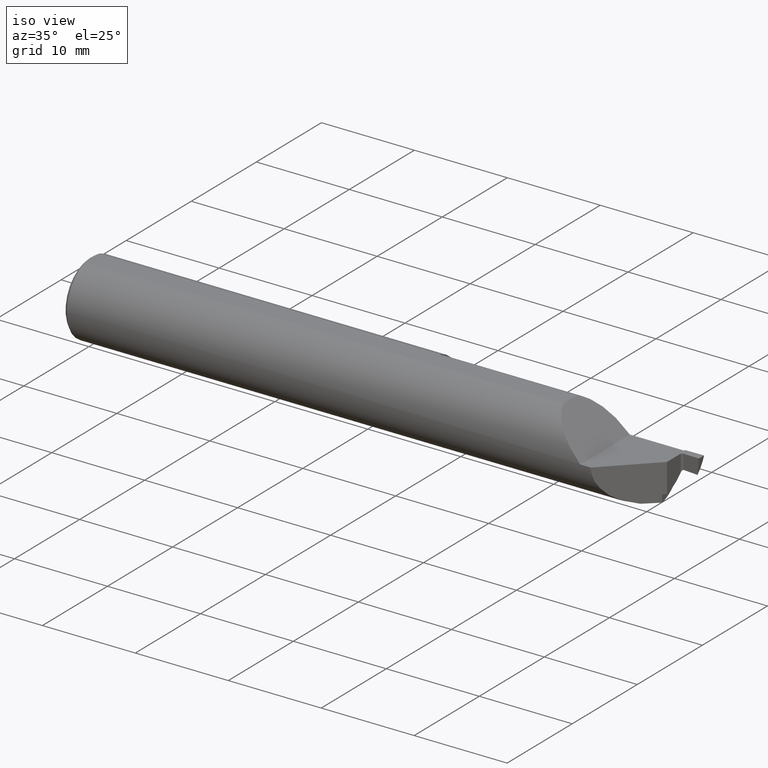
[diagram: clean part render]
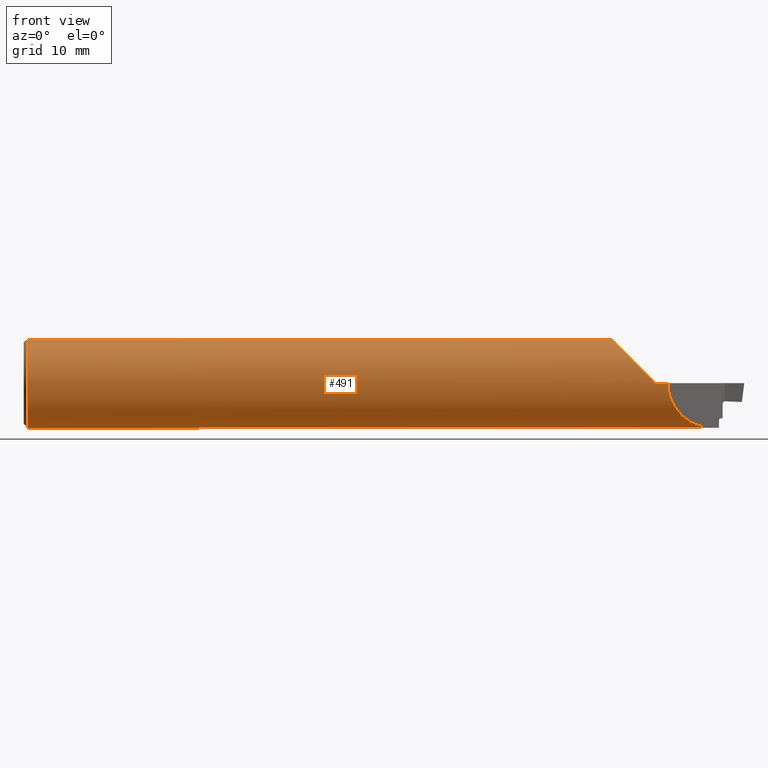
[diagram: tour spotlight — one face highlighted and labeled with its STEP entity id]
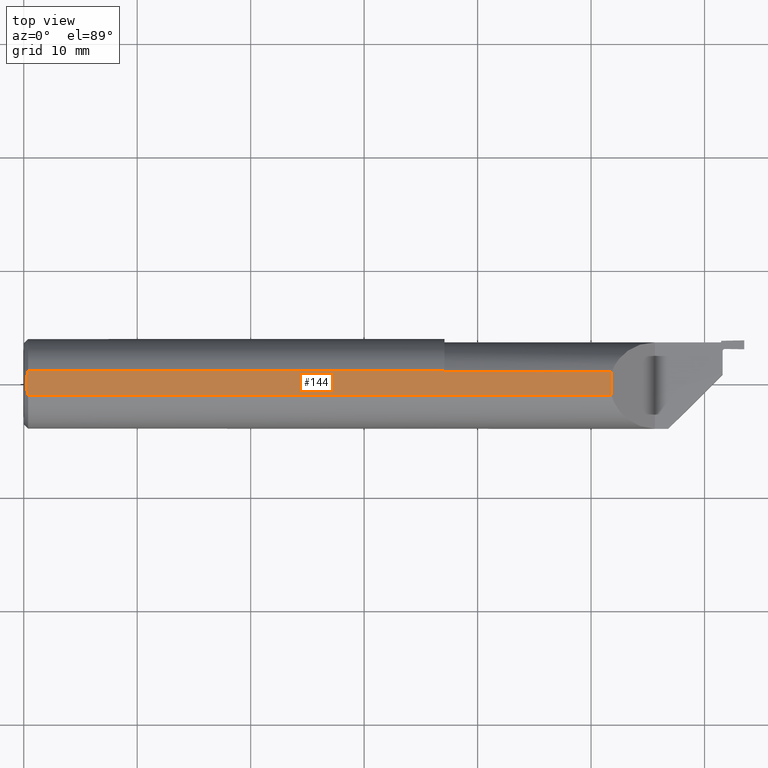
[diagram: tour spotlight — one face highlighted and labeled with its STEP entity id]
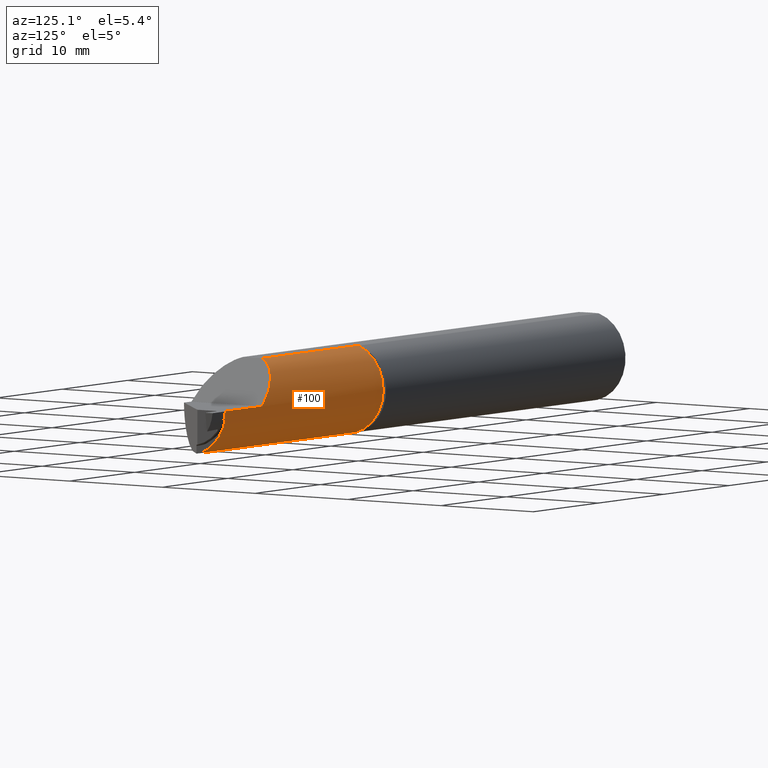
[diagram: tour spotlight — one face highlighted and labeled with its STEP entity id]
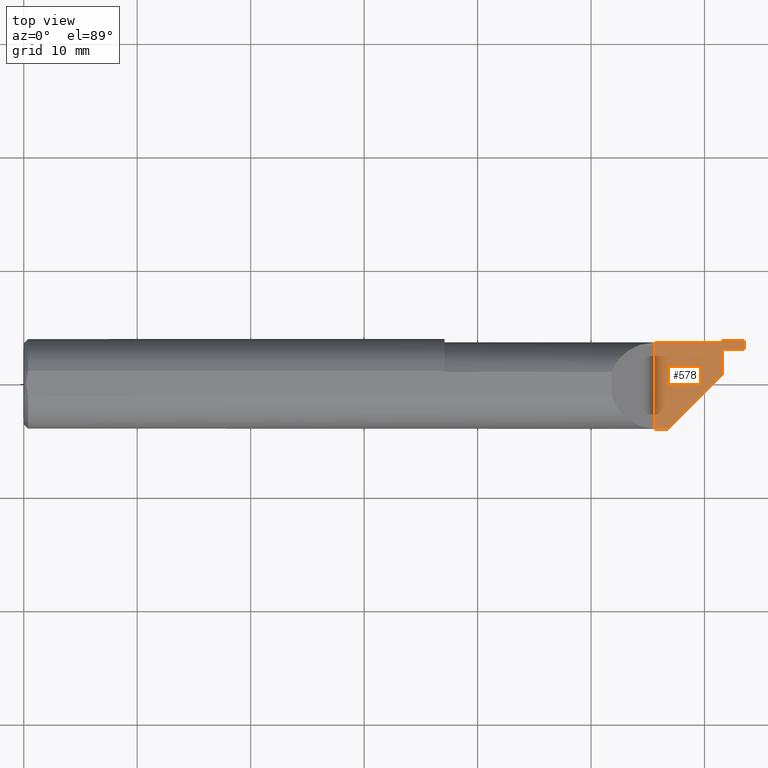
[diagram: tour spotlight — one face highlighted and labeled with its STEP entity id]
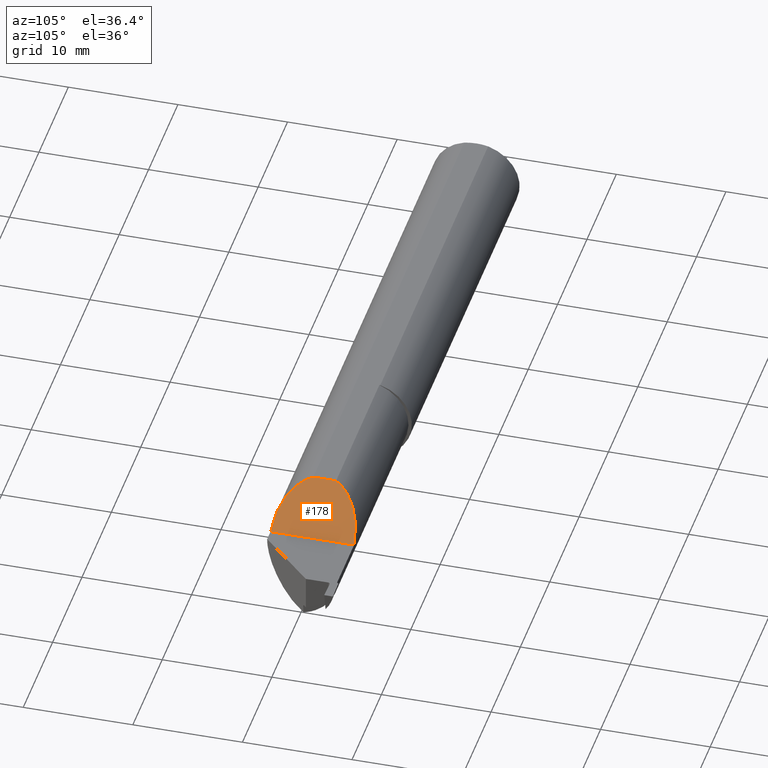
[diagram: tour spotlight — one face highlighted and labeled with its STEP entity id]
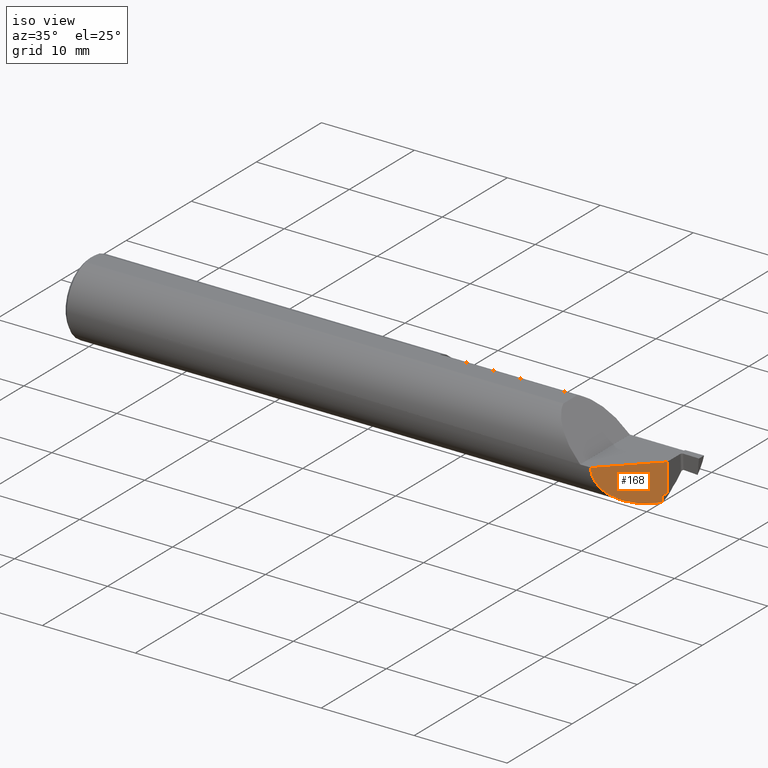
[diagram: tour spotlight — one face highlighted and labeled with its STEP entity id]
A machine part: a face-by-face anatomy tour. The part has 22 B-rep faces; the first image is the clean iso view, then the 6 largest visible faces are spotlighted one at a time (largest first), each with its STEP entity span.

Face 1 — front view, entity #491. In plain terms, the highlighted cylindrical surface (partial cylindrical patch) has radius 3.9649 mm, axis along (-1, -0, -0).
Definition (entity closure, byte-faithful):
#1 = ORIENTED_EDGE ( 'NONE', *, *, #797, .T. ) ;
#4 = ORIENTED_EDGE ( 'NONE', *, *, #803, .T. ) ;
#10 = CARTESIAN_POINT ( 'NONE',  ( 0.01499999999999970281, 0.000000000000000000, -0.1560999999999999888 ) ) ;
#18 = VERTEX_POINT ( 'NONE', #209 ) ;
#20 = CARTESIAN_POINT ( 'NONE',  ( 2.189999999999999947, -0.1560999679692472164, 9.999999999982123341E-05 ) ) ;
#23 = CARTESIAN_POINT ( 'NONE',  ( 1.460000000000000187, 0.04286257108480545641, 0.1500999999999999834 ) ) ;
#36 = VERTEX_POINT ( 'NONE', #665 ) ;
#39 = CARTESIAN_POINT ( 'NONE',  ( 0.000000000000000000, 0.000000000000000000, 0.000000000000000000 ) ) ;
#48 = DIRECTION ( 'NONE',  ( 1.000000000000000000, 0.000000000000000000, 0.000000000000000000 ) ) ;
#59 = DIRECTION ( 'NONE',  ( 0.000000000000000000, 1.000000000000000000, 0.000000000000000000 ) ) ;
#60 = CARTESIAN_POINT ( 'NONE',  ( 1.938500000000000112, 0.03081474338883894229, -0.1530283032313957403 ) ) ;
#69 = DIRECTION ( 'NONE',  ( -1.000000000000000000, -0.000000000000000000, -0.000000000000000000 ) ) ;
#71 = VERTEX_POINT ( 'NONE', #10 ) ;
#78 = VERTEX_POINT ( 'NONE', #342 ) ;
#87 = EDGE_CURVE ( 'NONE', #97, #312, #558, .T. ) ;
#96 = EDGE_CURVE ( 'NONE', #78, #498, #468, .T. ) ;
#97 = VERTEX_POINT ( 'NONE', #780 ) ;
#105 =( BOUNDED_CURVE ( )  B_SPLINE_CURVE ( 3, ( #20, #686, #217, #353 ),
 .UNSPECIFIED., .F., .T. ) 
 B_SPLINE_CURVE_WITH_KNOTS ( ( 4, 4 ),
 ( 4.713029595418896101, 6.005028202575334539 ),
 .UNSPECIFIED. ) 
 CURVE ( )  GEOMETRIC_REPRESENTATION_ITEM ( )  RATIONAL_B_SPLINE_CURVE ( ( 1.000000000000000000, 0.8656657255323875200, 0.8656657255323875200, 1.000000000000000000 ) ) 
 REPRESENTATION_ITEM ( '' )  );
#107 = AXIS2_PLACEMENT_3D ( 'NONE', #364, #48, #706 ) ;
#136 = VERTEX_POINT ( 'NONE', #545 ) ;
#145 = VERTEX_POINT ( 'NONE', #602 ) ;
#153 = CARTESIAN_POINT ( 'NONE',  ( 2.189999999999999947, -0.1560999999999999888, 0.000000000000000000 ) ) ;
#161 = DIRECTION ( 'NONE',  ( 0.000000000000000000, 0.000000000000000000, 1.000000000000000000 ) ) ;
#184 = EDGE_CURVE ( 'NONE', #312, #78, #594, .T. ) ;
#186 = ORIENTED_EDGE ( 'NONE', *, *, #224, .F. ) ;
#188 = CIRCLE ( 'NONE', #570, 0.1560999999999999888 ) ;
#199 = ORIENTED_EDGE ( 'NONE', *, *, #87, .T. ) ;
#201 = CARTESIAN_POINT ( 'NONE',  ( 2.412228558182164306, 0.02764056915058612021, -0.1536674749568722742 ) ) ;
#209 = CARTESIAN_POINT ( 'NONE',  ( 2.189999999999999947, -0.1560999679692472164, 9.999999999982123341E-05 ) ) ;
#217 = CARTESIAN_POINT ( 'NONE',  ( 2.059871508359184311, -0.1124504032942231085, 0.1302284916408148197 ) ) ;
#218 = VECTOR ( 'NONE', #733, 39.37007874015748143 ) ;
#224 = EDGE_CURVE ( 'NONE', #97, #136, #379, .T. ) ;
#237 = DIRECTION ( 'NONE',  ( 0.000000000000000000, 0.000000000000000000, -1.000000000000000000 ) ) ;
#247 = AXIS2_PLACEMENT_3D ( 'NONE', #411, #538, #802 ) ;
#264 = CARTESIAN_POINT ( 'NONE',  ( 2.412340275719562221, 0.02124027571956232235, -0.1546481835889350898 ) ) ;
#271 = CIRCLE ( 'NONE', #107, 0.1560999999999999888 ) ;
#312 = VERTEX_POINT ( 'NONE', #264 ) ;
#323 = ORIENTED_EDGE ( 'NONE', *, *, #184, .T. ) ;
#337 = VECTOR ( 'NONE', #429, 39.37007874015748143 ) ;
#342 = CARTESIAN_POINT ( 'NONE',  ( 2.234999999999999432, -0.1560999999999999888, 0.000000000000000000 ) ) ;
#347 = ORIENTED_EDGE ( 'NONE', *, *, #622, .T. ) ;
#349 = CIRCLE ( 'NONE', #247, 0.1560999999999999888 ) ;
#353 = CARTESIAN_POINT ( 'NONE',  ( 2.039999999999999591, -0.04286257108480545641, 0.1500999999999999834 ) ) ;
#356 = FACE_OUTER_BOUND ( 'NONE', #704, .T. ) ;
#364 = CARTESIAN_POINT ( 'NONE',  ( 0.01499999999999970281, 0.000000000000000000, 0.000000000000000000 ) ) ;
#372 = CARTESIAN_POINT ( 'NONE',  ( 1.460000000000000187, 0.000000000000000000, 0.000000000000000000 ) ) ;
#375 = CIRCLE ( 'NONE', #542, 0.1560999999999999888 ) ;
#376 = DIRECTION ( 'NONE',  ( 1.000000000000000000, -4.001730459469135844E-17, 0.000000000000000000 ) ) ;
#379 = LINE ( 'NONE', #60, #337 ) ;
#382 = CARTESIAN_POINT ( 'NONE',  ( 2.234999999999999432, -0.1560999999999999888, -0.1016637934243032199 ) ) ;
#387 = VERTEX_POINT ( 'NONE', #786 ) ;
#388 = EDGE_CURVE ( 'NONE', #145, #387, #730, .T. ) ;
#404 = ORIENTED_EDGE ( 'NONE', *, *, #447, .T. ) ;
#409 = ORIENTED_EDGE ( 'NONE', *, *, #435, .F. ) ;
#411 = CARTESIAN_POINT ( 'NONE',  ( 0.01499999999999970281, 0.000000000000000000, 0.000000000000000000 ) ) ;
#417 = ORIENTED_EDGE ( 'NONE', *, *, #672, .F. ) ;
#422 = DIRECTION ( 'NONE',  ( 1.000000000000000000, 0.000000000000000000, 0.000000000000000000 ) ) ;
#429 = DIRECTION ( 'NONE',  ( -1.000000000000000000, 4.001730459469135844E-17, -0.000000000000000000 ) ) ;
#435 = EDGE_CURVE ( 'NONE', #18, #498, #375, .T. ) ;
#447 = EDGE_CURVE ( 'NONE', #71, #36, #349, .T. ) ;
#453 = CARTESIAN_POINT ( 'NONE',  ( 2.412284283808364460, 0.02444805016371535619, -0.1542076092992228642 ) ) ;
#467 = CARTESIAN_POINT ( 'NONE',  ( 0.000000000000000000, 0.04286257108480545641, 0.1500999999999999834 ) ) ;
#468 = LINE ( 'NONE', #647, #767 ) ;
#471 = DIRECTION ( 'NONE',  ( 1.000000000000000000, 0.000000000000000000, -0.000000000000000000 ) ) ;
#474 = VERTEX_POINT ( 'NONE', #23 ) ;
#491 = ADVANCED_FACE ( 'NONE', ( #356 ), #668, .T. ) ;
#498 = VERTEX_POINT ( 'NONE', #153 ) ;
#510 = CARTESIAN_POINT ( 'NONE',  ( 2.412340275719562221, 0.02124027571956232235, -0.1546481835889350898 ) ) ;
#538 = DIRECTION ( 'NONE',  ( 1.000000000000000000, 0.000000000000000000, 0.000000000000000000 ) ) ;
#541 = DIRECTION ( 'NONE',  ( -1.000000000000000000, -0.000000000000000000, -0.000000000000000000 ) ) ;
#542 = AXIS2_PLACEMENT_3D ( 'NONE', #675, #471, #237 ) ;
#545 = CARTESIAN_POINT ( 'NONE',  ( 1.460000000000000187, 0.03081474338883832820, -0.1530283032313958513 ) ) ;
#558 =( BOUNDED_CURVE ( )  B_SPLINE_CURVE ( 3, ( #731, #201, #453, #718 ),
 .UNSPECIFIED., .F., .T. ) 
 B_SPLINE_CURVE_WITH_KNOTS ( ( 4, 4 ),
 ( 1.372087361718230314, 1.434304523809091014 ),
 .UNSPECIFIED. ) 
 CURVE ( )  GEOMETRIC_REPRESENTATION_ITEM ( )  RATIONAL_B_SPLINE_CURVE ( ( 1.000000000000000000, 0.9996774447422765997, 0.9996774447422765997, 1.000000000000000000 ) ) 
 REPRESENTATION_ITEM ( '' )  );
#569 = ORIENTED_EDGE ( 'NONE', *, *, #388, .T. ) ;
#570 = AXIS2_PLACEMENT_3D ( 'NONE', #372, #376, #59 ) ;
#594 =( BOUNDED_CURVE ( )  B_SPLINE_CURVE ( 3, ( #510, #695, #382, #637 ),
 .UNSPECIFIED., .F., .T. ) 
 B_SPLINE_CURVE_WITH_KNOTS ( ( 4, 4 ),
 ( 4.575897177398883464, 6.283185307179586232 ),
 .UNSPECIFIED. ) 
 CURVE ( )  GEOMETRIC_REPRESENTATION_ITEM ( )  RATIONAL_B_SPLINE_CURVE ( ( 1.000000000000000000, 0.7714940369164798861, 0.7714940369164798861, 1.000000000000000000 ) ) 
 REPRESENTATION_ITEM ( '' )  );
#602 = CARTESIAN_POINT ( 'NONE',  ( 2.039999999999999591, -0.04286257108480545641, 0.1500999999999999834 ) ) ;
#622 = EDGE_CURVE ( 'NONE', #387, #71, #271, .T. ) ;
#637 = CARTESIAN_POINT ( 'NONE',  ( 2.234999999999999432, -0.1560999999999999888, 0.000000000000000000 ) ) ;
#647 = CARTESIAN_POINT ( 'NONE',  ( 0.000000000000000000, -0.1560999999999999888, 0.000000000000000000 ) ) ;
#660 = ORIENTED_EDGE ( 'NONE', *, *, #96, .T. ) ;
#665 = CARTESIAN_POINT ( 'NONE',  ( 0.01499999999999970281, 0.04286257108480545641, 0.1500999999999999834 ) ) ;
#668 = CYLINDRICAL_SURFACE ( 'NONE', #690, 0.1560999999999999888 ) ;
#672 = EDGE_CURVE ( 'NONE', #136, #474, #188, .T. ) ;
#675 = CARTESIAN_POINT ( 'NONE',  ( 2.189999999999999947, 0.000000000000000000, 0.000000000000000000 ) ) ;
#684 = CARTESIAN_POINT ( 'NONE',  ( 0.000000000000000000, -0.04286257108480545641, 0.1500999999999999834 ) ) ;
#686 = CARTESIAN_POINT ( 'NONE',  ( 2.117630523791210084, -0.1560536069884282118, 0.07246947620879010121 ) ) ;
#690 = AXIS2_PLACEMENT_3D ( 'NONE', #39, #541, #161 ) ;
#695 = CARTESIAN_POINT ( 'NONE',  ( 2.311622011851341529, -0.07947798814865804362, -0.1684814123078898773 ) ) ;
#704 = EDGE_LOOP ( 'NONE', ( #186, #199, #323, #660, #409, #1, #569, #347, #404, #4, #417 ) ) ;
#706 = DIRECTION ( 'NONE',  ( 0.000000000000000000, 0.000000000000000000, -1.000000000000000000 ) ) ;
#718 = CARTESIAN_POINT ( 'NONE',  ( 2.412340275719562221, 0.02124027571956232235, -0.1546481835889350898 ) ) ;
#730 = LINE ( 'NONE', #684, #218 ) ;
#731 = CARTESIAN_POINT ( 'NONE',  ( 2.412173152764742312, 0.03081474338882098443, -0.1530283032314002645 ) ) ;
#733 = DIRECTION ( 'NONE',  ( -1.000000000000000000, -0.000000000000000000, -0.000000000000000000 ) ) ;
#767 = VECTOR ( 'NONE', #69, 39.37007874015748143 ) ;
#773 = VECTOR ( 'NONE', #422, 39.37007874015748143 ) ;
#780 = CARTESIAN_POINT ( 'NONE',  ( 2.412173152764742312, 0.03081474338882098443, -0.1530283032314002645 ) ) ;
#786 = CARTESIAN_POINT ( 'NONE',  ( 0.01499999999999953107, -0.04286257108480568540, 0.1500999999999999834 ) ) ;
#797 = EDGE_CURVE ( 'NONE', #18, #145, #105, .T. ) ;
#798 = LINE ( 'NONE', #467, #773 ) ;
#802 = DIRECTION ( 'NONE',  ( 0.000000000000000000, 0.000000000000000000, -1.000000000000000000 ) ) ;
#803 = EDGE_CURVE ( 'NONE', #36, #474, #798, .T. ) ;

Face 2 — top view, entity #144. In plain terms, the highlighted planar face has unit normal (0, 0, -1).
Definition (entity closure, byte-faithful):
#2 = EDGE_LOOP ( 'NONE', ( #593, #512, #666, #639, #420, #343, #502 ) ) ;
#23 = CARTESIAN_POINT ( 'NONE',  ( 1.460000000000000187, 0.04286257108480545641, 0.1500999999999999834 ) ) ;
#36 = VERTEX_POINT ( 'NONE', #665 ) ;
#47 = CARTESIAN_POINT ( 'NONE',  ( 0.01308010236197408062, -0.03587054952121924989, 0.1500999999999999834 ) ) ;
#49 = EDGE_CURVE ( 'NONE', #284, #505, #274, .T. ) ;
#56 = CARTESIAN_POINT ( 'NONE',  ( 0.008999999999999465025, -0.007244529225202475144, 0.1500999999999999834 ) ) ;
#57 = VERTEX_POINT ( 'NONE', #402 ) ;
#64 = VECTOR ( 'NONE', #524, 39.37007874015748143 ) ;
#94 = CARTESIAN_POINT ( 'NONE',  ( 2.039999999999999591, 0.03950672882812745340, 0.1500999999999999834 ) ) ;
#144 = ADVANCED_FACE ( 'NONE', ( #227 ), #799, .F. ) ;
#145 = VERTEX_POINT ( 'NONE', #602 ) ;
#146 = DIRECTION ( 'NONE',  ( -4.001730459469135844E-17, -1.000000000000000000, 0.000000000000000000 ) ) ;
#164 = DIRECTION ( 'NONE',  ( -0.000000000000000000, 1.000000000000000000, 0.000000000000000000 ) ) ;
#218 = VECTOR ( 'NONE', #733, 39.37007874015748143 ) ;
#222 = CARTESIAN_POINT ( 'NONE',  ( 0.008999999999999475433, 0.007249779851909447098, 0.1500999999999999834 ) ) ;
#227 = FACE_OUTER_BOUND ( 'NONE', #2, .T. ) ;
#230 = LINE ( 'NONE', #745, #822 ) ;
#232 = DIRECTION ( 'NONE',  ( 0.000000000000000000, 0.000000000000000000, -1.000000000000000000 ) ) ;
#234 = EDGE_CURVE ( 'NONE', #57, #387, #678, .T. ) ;
#274 = LINE ( 'NONE', #398, #64 ) ;
#284 = VERTEX_POINT ( 'NONE', #658 ) ;
#303 = CARTESIAN_POINT ( 'NONE',  ( 0.008999999999998765932, 6.845491512164019265E-17, 0.1500999999999999834 ) ) ;
#315 = CARTESIAN_POINT ( 'NONE',  ( 0.01156122974740472244, -0.02873113156979012484, 0.1500999999999999279 ) ) ;
#316 = EDGE_CURVE ( 'NONE', #474, #284, #341, .T. ) ;
#341 = LINE ( 'NONE', #588, #571 ) ;
#343 = ORIENTED_EDGE ( 'NONE', *, *, #388, .F. ) ;
#345 = CARTESIAN_POINT ( 'NONE',  ( 0.01308967235647840940, 0.03590540221680477151, 0.1500999999999999834 ) ) ;
#357 = CARTESIAN_POINT ( 'NONE',  ( 0.009538385840405057964, 0.01455983656044575192, 0.1500999999999999279 ) ) ;
#361 = CARTESIAN_POINT ( 'NONE',  ( 0.01158539406439744110, 0.02885992225672986272, 0.1500999999999999834 ) ) ;
#363 = AXIS2_PLACEMENT_3D ( 'NONE', #607, #232, #488 ) ;
#387 = VERTEX_POINT ( 'NONE', #786 ) ;
#388 = EDGE_CURVE ( 'NONE', #145, #387, #730, .T. ) ;
#398 = CARTESIAN_POINT ( 'NONE',  ( 1.460000000000000187, 0.03950672882812769626, 0.1500999999999999834 ) ) ;
#402 = CARTESIAN_POINT ( 'NONE',  ( 0.008999999999998765932, 6.845491512164019265E-17, 0.1500999999999999834 ) ) ;
#420 = ORIENTED_EDGE ( 'NONE', *, *, #234, .T. ) ;
#422 = DIRECTION ( 'NONE',  ( 1.000000000000000000, 0.000000000000000000, 0.000000000000000000 ) ) ;
#467 = CARTESIAN_POINT ( 'NONE',  ( 0.000000000000000000, 0.04286257108480545641, 0.1500999999999999834 ) ) ;
#472 = CARTESIAN_POINT ( 'NONE',  ( 0.008999999999998765932, 6.845491512164019265E-17, 0.1500999999999999834 ) ) ;
#474 = VERTEX_POINT ( 'NONE', #23 ) ;
#488 = DIRECTION ( 'NONE',  ( -1.000000000000000000, 0.000000000000000000, -0.000000000000000000 ) ) ;
#502 = ORIENTED_EDGE ( 'NONE', *, *, #554, .T. ) ;
#505 = VERTEX_POINT ( 'NONE', #94 ) ;
#512 = ORIENTED_EDGE ( 'NONE', *, *, #316, .F. ) ;
#524 = DIRECTION ( 'NONE',  ( 1.000000000000000000, -4.001730459469135844E-17, 0.000000000000000000 ) ) ;
#554 = EDGE_CURVE ( 'NONE', #145, #505, #230, .T. ) ;
#565 = CARTESIAN_POINT ( 'NONE',  ( 0.01499999999999953107, -0.04286257108480568540, 0.1500999999999999834 ) ) ;
#571 = VECTOR ( 'NONE', #146, 39.37007874015748143 ) ;
#588 = CARTESIAN_POINT ( 'NONE',  ( 1.460000000000000187, -0.2561000000000000498, 0.1500999999999999834 ) ) ;
#593 = ORIENTED_EDGE ( 'NONE', *, *, #49, .F. ) ;
#602 = CARTESIAN_POINT ( 'NONE',  ( 2.039999999999999591, -0.04286257108480545641, 0.1500999999999999834 ) ) ;
#606 = CARTESIAN_POINT ( 'NONE',  ( 0.01499999999999970281, 0.04286257108480545641, 0.1500999999999999834 ) ) ;
#607 = CARTESIAN_POINT ( 'NONE',  ( 0.000000000000000000, -0.2560999999999999943, 0.1500999999999999834 ) ) ;
#639 = ORIENTED_EDGE ( 'NONE', *, *, #812, .T. ) ;
#658 = CARTESIAN_POINT ( 'NONE',  ( 1.460000000000000187, 0.03950672882812750197, 0.1500999999999999834 ) ) ;
#665 = CARTESIAN_POINT ( 'NONE',  ( 0.01499999999999970281, 0.04286257108480545641, 0.1500999999999999834 ) ) ;
#666 = ORIENTED_EDGE ( 'NONE', *, *, #803, .F. ) ;
#678 = B_SPLINE_CURVE_WITH_KNOTS ( 'NONE', 3,
 ( #303, #56, #755, #315, #47, #565 ),
 .UNSPECIFIED., .F., .F.,
 ( 4, 2, 4 ),
 ( 0.004962684357525391429, 0.005507153342650035824, 0.006051622327774681086 ),
 .UNSPECIFIED. ) ;
#684 = CARTESIAN_POINT ( 'NONE',  ( 0.000000000000000000, -0.04286257108480545641, 0.1500999999999999834 ) ) ;
#730 = LINE ( 'NONE', #684, #218 ) ;
#733 = DIRECTION ( 'NONE',  ( -1.000000000000000000, -0.000000000000000000, -0.000000000000000000 ) ) ;
#740 = B_SPLINE_CURVE_WITH_KNOTS ( 'NONE', 3,
 ( #606, #345, #361, #357, #222, #472 ),
 .UNSPECIFIED., .F., .F.,
 ( 4, 2, 4 ),
 ( 0.003872957156311482643, 0.004417820756918437036, 0.004962684357525391429 ),
 .UNSPECIFIED. ) ;
#745 = CARTESIAN_POINT ( 'NONE',  ( 2.039999999999999591, 0.04286257108480545641, 0.1500999999999999834 ) ) ;
#755 = CARTESIAN_POINT ( 'NONE',  ( 0.009526811708237869006, -0.01443825677426632814, 0.1500999999999999834 ) ) ;
#773 = VECTOR ( 'NONE', #422, 39.37007874015748143 ) ;
#786 = CARTESIAN_POINT ( 'NONE',  ( 0.01499999999999953107, -0.04286257108480568540, 0.1500999999999999834 ) ) ;
#798 = LINE ( 'NONE', #467, #773 ) ;
#799 = PLANE ( 'NONE',  #363 ) ;
#803 = EDGE_CURVE ( 'NONE', #36, #474, #798, .T. ) ;
#812 = EDGE_CURVE ( 'NONE', #36, #57, #740, .T. ) ;
#822 = VECTOR ( 'NONE', #164, 39.37007874015748143 ) ;

Face 3 — auxiliary view, entity #100. In plain terms, the highlighted cylindrical surface (partial cylindrical patch) has radius 4.064 mm, axis along (-1, 0, -0).
Definition (entity closure, byte-faithful):
#3 = CARTESIAN_POINT ( 'NONE',  ( 2.410339872995253430, 0.1358432710433603585, -0.05093267548819575830 ) ) ;
#7 = CARTESIAN_POINT ( 'NONE',  ( 2.410367050542459921, 0.1342862704047140809, -0.05517114649464890247 ) ) ;
#19 = CARTESIAN_POINT ( 'NONE',  ( 2.415246186865591671, 0.1412541801540121988, -0.03003871284944778855 ) ) ;
#25 = CARTESIAN_POINT ( 'NONE',  ( 2.415246186865591671, 0.1412541801540121988, -0.03003871284944778855 ) ) ;
#38 = AXIS2_PLACEMENT_3D ( 'NONE', #753, #423, #539 ) ;
#49 = EDGE_CURVE ( 'NONE', #284, #505, #274, .T. ) ;
#53 =( BOUNDED_CURVE ( )  B_SPLINE_CURVE ( 3, ( #626, #185, #437, #192 ),
 .UNSPECIFIED., .F., .T. ) 
 B_SPLINE_CURVE_WITH_KNOTS ( ( 4, 4 ),
 ( 4.713013980425380112, 5.929564525929066576 ),
 .UNSPECIFIED. ) 
 CURVE ( )  GEOMETRIC_REPRESENTATION_ITEM ( )  RATIONAL_B_SPLINE_CURVE ( ( 1.000000000000000000, 0.8804232255846620170, 0.8804232255846620170, 1.000000000000000000 ) ) 
 REPRESENTATION_ITEM ( '' )  );
#60 = CARTESIAN_POINT ( 'NONE',  ( 1.938500000000000112, 0.03081474338883894229, -0.1530283032313957403 ) ) ;
#63 = CARTESIAN_POINT ( 'NONE',  ( 2.413539792713095711, 0.1409844017169971930, -0.03142091763420357120 ) ) ;
#64 = VECTOR ( 'NONE', #524, 39.37007874015748143 ) ;
#81 = ORIENTED_EDGE ( 'NONE', *, *, #286, .T. ) ;
#84 = CARTESIAN_POINT ( 'NONE',  ( 2.415830788882866731, 0.1412445888308691833, -0.03008889222423504275 ) ) ;
#86 = CARTESIAN_POINT ( 'NONE',  ( 2.410674172906858814, 0.1166912419323255651, -0.1030683767120857686 ) ) ;
#93 = ORIENTED_EDGE ( 'NONE', *, *, #112, .T. ) ;
#94 = CARTESIAN_POINT ( 'NONE',  ( 2.039999999999999591, 0.03950672882812745340, 0.1500999999999999834 ) ) ;
#97 = VERTEX_POINT ( 'NONE', #780 ) ;
#100 = ADVANCED_FACE ( 'NONE', ( #205 ), #457, .T. ) ;
#112 = EDGE_CURVE ( 'NONE', #297, #97, #531, .T. ) ;
#125 = EDGE_CURVE ( 'NONE', #788, #525, #811, .T. ) ;
#136 = VERTEX_POINT ( 'NONE', #545 ) ;
#137 = CARTESIAN_POINT ( 'NONE',  ( 2.414190716435626882, 0.1411693645472843484, -0.03048284773503953313 ) ) ;
#143 = DIRECTION ( 'NONE',  ( -1.000000000000000000, 4.001730459469135844E-17, -0.000000000000000000 ) ) ;
#157 = CARTESIAN_POINT ( 'NONE',  ( 2.416415393262477895, 0.1412349785471047059, -0.03013904046635193512 ) ) ;
#167 = VERTEX_POINT ( 'NONE', #25 ) ;
#182 = VERTEX_POINT ( 'NONE', #223 ) ;
#185 = CARTESIAN_POINT ( 'NONE',  ( 2.120766287695780239, 0.1440559360311356729, 0.06933371230421989106 ) ) ;
#192 = CARTESIAN_POINT ( 'NONE',  ( 2.039999999999999591, 0.03950672882812745340, 0.1500999999999999834 ) ) ;
#205 = FACE_OUTER_BOUND ( 'NONE', #769, .T. ) ;
#206 = EDGE_CURVE ( 'NONE', #335, #505, #53, .T. ) ;
#223 = CARTESIAN_POINT ( 'NONE',  ( 2.189999999999999947, 0.1440992383597802240, 0.000000000000000000 ) ) ;
#224 = EDGE_CURVE ( 'NONE', #97, #136, #379, .T. ) ;
#266 = CARTESIAN_POINT ( 'NONE',  ( 2.414660684680331570, 0.1412637862458374360, -0.02998845620865091960 ) ) ;
#270 = CARTESIAN_POINT ( 'NONE',  ( 1.460000000000000187, 0.1440992383597802795, 0.000000000000000000 ) ) ;
#273 = CARTESIAN_POINT ( 'NONE',  ( 2.412661596476739945, 0.1405551471962304677, -0.03350666659676166531 ) ) ;
#274 = LINE ( 'NONE', #398, #64 ) ;
#282 = DIRECTION ( 'NONE',  ( 0.000000000000000000, -1.000000000000000000, 0.000000000000000000 ) ) ;
#284 = VERTEX_POINT ( 'NONE', #658 ) ;
#286 = EDGE_CURVE ( 'NONE', #182, #788, #649, .T. ) ;
#297 = VERTEX_POINT ( 'NONE', #456 ) ;
#310 = DIRECTION ( 'NONE',  ( 1.000000000000000000, 0.000000000000000000, -0.000000000000000000 ) ) ;
#319 = DIRECTION ( 'NONE',  ( -1.000000000000000000, 4.001730459469135844E-17, -0.000000000000000000 ) ) ;
#329 = CARTESIAN_POINT ( 'NONE',  ( 2.410513469640426454, 0.1372236151571464557, -0.04662203022825879561 ) ) ;
#331 = ORIENTED_EDGE ( 'NONE', *, *, #430, .F. ) ;
#335 = VERTEX_POINT ( 'NONE', #513 ) ;
#336 = CARTESIAN_POINT ( 'NONE',  ( 2.415246186865591671, 0.1412541801540121988, -0.03003871284944778855 ) ) ;
#337 = VECTOR ( 'NONE', #429, 39.37007874015748143 ) ;
#354 = CARTESIAN_POINT ( 'NONE',  ( 2.412173152764742312, 0.03081474338882098443, -0.1530283032314002645 ) ) ;
#362 = CIRCLE ( 'NONE', #674, 0.1599999999999999756 ) ;
#371 = EDGE_CURVE ( 'NONE', #167, #297, #791, .T. ) ;
#379 = LINE ( 'NONE', #60, #337 ) ;
#391 = CARTESIAN_POINT ( 'NONE',  ( 2.413300451121911827, 0.1408811929287878684, -0.03193283185982991740 ) ) ;
#392 = ORIENTED_EDGE ( 'NONE', *, *, #206, .F. ) ;
#398 = CARTESIAN_POINT ( 'NONE',  ( 1.460000000000000187, 0.03950672882812769626, 0.1500999999999999834 ) ) ;
#421 = CARTESIAN_POINT ( 'NONE',  ( 2.417000000000000259, 0.1412253493840881502, -0.03018915756321928837 ) ) ;
#423 = DIRECTION ( 'NONE',  ( -1.000000000000000000, 4.001730459469135844E-17, -0.000000000000000000 ) ) ;
#429 = DIRECTION ( 'NONE',  ( -1.000000000000000000, 4.001730459469135844E-17, -0.000000000000000000 ) ) ;
#430 = EDGE_CURVE ( 'NONE', #167, #525, #685, .T. ) ;
#437 = CARTESIAN_POINT ( 'NONE',  ( 2.063975418773851711, 0.1044566178690502362, 0.1261245812261483912 ) ) ;
#440 = DIRECTION ( 'NONE',  ( 0.000000000000000000, -1.000000000000000000, 0.000000000000000000 ) ) ;
#456 = CARTESIAN_POINT ( 'NONE',  ( 2.410367050542459921, 0.1342862704047140809, -0.05517114649464890247 ) ) ;
#457 = CYLINDRICAL_SURFACE ( 'NONE', #744, 0.1600000000000000311 ) ;
#464 = ORIENTED_EDGE ( 'NONE', *, *, #701, .F. ) ;
#503 = DIRECTION ( 'NONE',  ( 0.000000000000000000, 0.000000000000000000, -1.000000000000000000 ) ) ;
#505 = VERTEX_POINT ( 'NONE', #94 ) ;
#513 = CARTESIAN_POINT ( 'NONE',  ( 2.189999999999999947, 0.1440992071097771388, 9.999999999993541345E-05 ) ) ;
#524 = DIRECTION ( 'NONE',  ( 1.000000000000000000, -4.001730459469135844E-17, 0.000000000000000000 ) ) ;
#525 = VERTEX_POINT ( 'NONE', #796 ) ;
#531 =( BOUNDED_CURVE ( )  B_SPLINE_CURVE ( 3, ( #735, #86, #677, #354 ),
 .UNSPECIFIED., .F., .T. ) 
 B_SPLINE_CURVE_WITH_KNOTS ( ( 4, 4 ),
 ( 0.3520466611609061602, 1.274508393031196229 ),
 .UNSPECIFIED. ) 
 CURVE ( )  GEOMETRIC_REPRESENTATION_ITEM ( )  RATIONAL_B_SPLINE_CURVE ( ( 1.000000000000000000, 0.9303369188587470306, 0.9303369188587470306, 1.000000000000000000 ) ) 
 REPRESENTATION_ITEM ( '' )  );
#539 = DIRECTION ( 'NONE',  ( 0.000000000000000000, -1.000000000000000000, 0.000000000000000000 ) ) ;
#545 = CARTESIAN_POINT ( 'NONE',  ( 1.460000000000000187, 0.03081474338883832820, -0.1530283032313958513 ) ) ;
#550 = CARTESIAN_POINT ( 'NONE',  ( 1.460000000000000187, -0.01590076164021977240, 0.000000000000000000 ) ) ;
#557 = AXIS2_PLACEMENT_3D ( 'NONE', #752, #310, #503 ) ;
#567 = CARTESIAN_POINT ( 'NONE',  ( 2.417000000000000259, 0.1440992383597802795, 0.000000000000000000 ) ) ;
#573 = CARTESIAN_POINT ( 'NONE',  ( 2.411267267060188679, 0.1390245871151592483, -0.04004133403210732162 ) ) ;
#590 = ORIENTED_EDGE ( 'NONE', *, *, #224, .T. ) ;
#592 = DIRECTION ( 'NONE',  ( 1.000000000000000000, -4.001730459469135844E-17, 0.000000000000000000 ) ) ;
#626 = CARTESIAN_POINT ( 'NONE',  ( 2.189999999999999947, 0.1440992071097771388, 9.999999999993541345E-05 ) ) ;
#645 = ORIENTED_EDGE ( 'NONE', *, *, #49, .T. ) ;
#646 = CARTESIAN_POINT ( 'NONE',  ( 2.411594810363549168, 0.1395756507323838436, -0.03784220081576765427 ) ) ;
#649 = LINE ( 'NONE', #270, #834 ) ;
#658 = CARTESIAN_POINT ( 'NONE',  ( 1.460000000000000187, 0.03950672882812750197, 0.1500999999999999834 ) ) ;
#667 = EDGE_CURVE ( 'NONE', #182, #335, #719, .T. ) ;
#674 = AXIS2_PLACEMENT_3D ( 'NONE', #550, #319, #440 ) ;
#677 = CARTESIAN_POINT ( 'NONE',  ( 2.411321286938228337, 0.07961810390442980445, -0.1381299243991303827 ) ) ;
#685 = B_SPLINE_CURVE_WITH_KNOTS ( 'NONE', 3,
 ( #19, #84, #157, #421 ),
 .UNSPECIFIED., .F., .F.,
 ( 4, 4 ),
 ( 6.952433221959954168E-18, 4.471644813185020122E-05 ),
 .UNSPECIFIED. ) ;
#701 = EDGE_CURVE ( 'NONE', #284, #136, #362, .T. ) ;
#719 = CIRCLE ( 'NONE', #557, 0.1600000000000000311 ) ;
#721 = CARTESIAN_POINT ( 'NONE',  ( 1.460000000000000187, -0.01590076164021977240, 0.000000000000000000 ) ) ;
#735 = CARTESIAN_POINT ( 'NONE',  ( 2.410367050542459921, 0.1342862704047140809, -0.05517114649464890247 ) ) ;
#744 = AXIS2_PLACEMENT_3D ( 'NONE', #721, #143, #282 ) ;
#752 = CARTESIAN_POINT ( 'NONE',  ( 2.189999999999999947, -0.01590076164021980362, 0.000000000000000000 ) ) ;
#753 = CARTESIAN_POINT ( 'NONE',  ( 2.417000000000000259, -0.01590076164021981056, 0.000000000000000000 ) ) ;
#759 = ORIENTED_EDGE ( 'NONE', *, *, #125, .T. ) ;
#769 = EDGE_LOOP ( 'NONE', ( #645, #392, #778, #81, #759, #331, #800, #93, #590, #464 ) ) ;
#778 = ORIENTED_EDGE ( 'NONE', *, *, #667, .F. ) ;
#779 = CARTESIAN_POINT ( 'NONE',  ( 2.412363130490927876, 0.1403195133480752699, -0.03458991795726994167 ) ) ;
#780 = CARTESIAN_POINT ( 'NONE',  ( 2.412173152764742312, 0.03081474338882098443, -0.1530283032314002645 ) ) ;
#788 = VERTEX_POINT ( 'NONE', #567 ) ;
#791 = B_SPLINE_CURVE_WITH_KNOTS ( 'NONE', 3,
 ( #336, #266, #137, #63, #391, #273, #779, #646, #573, #329, #3, #7 ),
 .UNSPECIFIED., .F., .F.,
 ( 4, 2, 2, 2, 2, 4 ),
 ( 6.767960460253380983E-05, 0.0001119222352177741625, 0.0001561648658330145288, 0.0002446501270634874551, 0.0004216206495244326571, 0.0007755616944463245791 ),
 .UNSPECIFIED. ) ;
#796 = CARTESIAN_POINT ( 'NONE',  ( 2.417000000000000259, 0.1412253493840881502, -0.03018915756321928837 ) ) ;
#800 = ORIENTED_EDGE ( 'NONE', *, *, #371, .T. ) ;
#811 = CIRCLE ( 'NONE', #38, 0.1600000000000001144 ) ;
#834 = VECTOR ( 'NONE', #592, 39.37007874015748143 ) ;

Face 4 — top view, entity #578. In plain terms, the highlighted planar face has unit normal (0, 0, -1).
Definition (entity closure, byte-faithful):
#12 = CARTESIAN_POINT ( 'NONE',  ( 2.500000000000000000, 0.1200992383597803692, 0.000000000000000000 ) ) ;
#21 = AXIS2_PLACEMENT_3D ( 'NONE', #600, #360, #285 ) ;
#34 = CARTESIAN_POINT ( 'NONE',  ( 2.433000000000000274, 0.1132675090856191391, 0.000000000000000000 ) ) ;
#51 = DIRECTION ( 'NONE',  ( 0.000000000000000000, -1.000000000000000000, 0.000000000000000000 ) ) ;
#69 = DIRECTION ( 'NONE',  ( -1.000000000000000000, -0.000000000000000000, -0.000000000000000000 ) ) ;
#78 = VERTEX_POINT ( 'NONE', #342 ) ;
#89 = CARTESIAN_POINT ( 'NONE',  ( 2.189999999999999947, -0.2560999999999999943, 0.000000000000000000 ) ) ;
#91 = LINE ( 'NONE', #808, #324 ) ;
#96 = EDGE_CURVE ( 'NONE', #78, #498, #468, .T. ) ;
#102 = DIRECTION ( 'NONE',  ( 0.000000000000000000, 0.000000000000000000, 1.000000000000000000 ) ) ;
#127 = CARTESIAN_POINT ( 'NONE',  ( 2.425000000000000266, 0.03390000000000001346, 0.000000000000000000 ) ) ;
#129 = EDGE_CURVE ( 'NONE', #215, #262, #426, .T. ) ;
#134 = DIRECTION ( 'NONE',  ( 4.001730459469135844E-17, 1.000000000000000000, 0.000000000000000000 ) ) ;
#140 = EDGE_CURVE ( 'NONE', #608, #715, #91, .T. ) ;
#141 = ORIENTED_EDGE ( 'NONE', *, *, #140, .F. ) ;
#153 = CARTESIAN_POINT ( 'NONE',  ( 2.189999999999999947, -0.1560999999999999888, 0.000000000000000000 ) ) ;
#169 = DIRECTION ( 'NONE',  ( 0.000000000000000000, 1.000000000000000000, 0.000000000000000000 ) ) ;
#172 = AXIS2_PLACEMENT_3D ( 'NONE', #748, #466, #529 ) ;
#173 = AXIS2_PLACEMENT_3D ( 'NONE', #34, #102, #618 ) ;
#181 = CARTESIAN_POINT ( 'NONE',  ( 2.433139705841341094, 0.1212662891354388955, 3.308097179827818972E-17 ) ) ;
#182 = VERTEX_POINT ( 'NONE', #223 ) ;
#202 = ORIENTED_EDGE ( 'NONE', *, *, #413, .T. ) ;
#215 = VERTEX_POINT ( 'NONE', #181 ) ;
#223 = CARTESIAN_POINT ( 'NONE',  ( 2.189999999999999947, 0.1440992383597802240, 0.000000000000000000 ) ) ;
#248 = CARTESIAN_POINT ( 'NONE',  ( 2.425000000000000266, 0.1132675090856191391, 0.000000000000000000 ) ) ;
#261 = EDGE_CURVE ( 'NONE', #262, #642, #823, .T. ) ;
#262 = VERTEX_POINT ( 'NONE', #621 ) ;
#263 = VERTEX_POINT ( 'NONE', #552 ) ;
#270 = CARTESIAN_POINT ( 'NONE',  ( 1.460000000000000187, 0.1440992383597802795, 0.000000000000000000 ) ) ;
#280 = CARTESIAN_POINT ( 'NONE',  ( 2.433139619251498242, 0.1212662906468702229, 0.000000000000000000 ) ) ;
#285 = DIRECTION ( 'NONE',  ( -1.000000000000000000, 0.000000000000000000, -0.000000000000000000 ) ) ;
#286 = EDGE_CURVE ( 'NONE', #182, #788, #649, .T. ) ;
#313 = CARTESIAN_POINT ( 'NONE',  ( 2.425000000000000266, 0.03390000000000001346, 0.000000000000000000 ) ) ;
#317 = VERTEX_POINT ( 'NONE', #12 ) ;
#322 = VECTOR ( 'NONE', #738, 39.37007874015747433 ) ;
#324 = VECTOR ( 'NONE', #485, 39.37007874015748854 ) ;
#328 = ORIENTED_EDGE ( 'NONE', *, *, #286, .F. ) ;
#338 = EDGE_CURVE ( 'NONE', #263, #608, #652, .T. ) ;
#342 = CARTESIAN_POINT ( 'NONE',  ( 2.234999999999999432, -0.1560999999999999888, 0.000000000000000000 ) ) ;
#360 = DIRECTION ( 'NONE',  ( 0.000000000000000000, 0.000000000000000000, -1.000000000000000000 ) ) ;
#374 = ORIENTED_EDGE ( 'NONE', *, *, #644, .F. ) ;
#380 = ORIENTED_EDGE ( 'NONE', *, *, #261, .F. ) ;
#381 = DIRECTION ( 'NONE',  ( -0.7071067811865487940, -0.7071067811865461294, 0.000000000000000000 ) ) ;
#399 = ORIENTED_EDGE ( 'NONE', *, *, #96, .F. ) ;
#400 = VECTOR ( 'NONE', #169, 39.37007874015748143 ) ;
#405 = FACE_OUTER_BOUND ( 'NONE', #815, .T. ) ;
#413 = EDGE_CURVE ( 'NONE', #317, #715, #807, .T. ) ;
#415 = LINE ( 'NONE', #280, #322 ) ;
#426 = CIRCLE ( 'NONE', #173, 0.008000000000000024453 ) ;
#466 = DIRECTION ( 'NONE',  ( -0.000000000000000000, -0.000000000000000000, 1.000000000000000000 ) ) ;
#468 = LINE ( 'NONE', #647, #767 ) ;
#484 = LINE ( 'NONE', #89, #400 ) ;
#485 = DIRECTION ( 'NONE',  ( 0.9998476951563914916, 0.01745240643726934937, 0.000000000000000000 ) ) ;
#493 = VECTOR ( 'NONE', #381, 39.37007874015748854 ) ;
#497 = EDGE_CURVE ( 'NONE', #317, #215, #415, .T. ) ;
#498 = VERTEX_POINT ( 'NONE', #153 ) ;
#523 = EDGE_CURVE ( 'NONE', #788, #263, #810, .T. ) ;
#529 = DIRECTION ( 'NONE',  ( -1.000000000000000000, 0.000000000000000000, 0.000000000000000000 ) ) ;
#552 = CARTESIAN_POINT ( 'NONE',  ( 2.419999999999999929, 0.1470992383597803099, 0.000000000000000000 ) ) ;
#562 = ORIENTED_EDGE ( 'NONE', *, *, #338, .F. ) ;
#567 = CARTESIAN_POINT ( 'NONE',  ( 2.417000000000000259, 0.1440992383597802795, 0.000000000000000000 ) ) ;
#578 = ADVANCED_FACE ( 'NONE', ( #405 ), #681, .F. ) ;
#592 = DIRECTION ( 'NONE',  ( 1.000000000000000000, -4.001730459469135844E-17, 0.000000000000000000 ) ) ;
#600 = CARTESIAN_POINT ( 'NONE',  ( 2.189999999999999947, -0.2560999999999999943, 0.000000000000000000 ) ) ;
#605 = CARTESIAN_POINT ( 'NONE',  ( 2.500000000000000000, -0.2560999999999999943, 0.000000000000000000 ) ) ;
#608 = VERTEX_POINT ( 'NONE', #813 ) ;
#610 = EDGE_CURVE ( 'NONE', #498, #182, #484, .T. ) ;
#618 = DIRECTION ( 'NONE',  ( -1.000000000000000000, 0.000000000000000000, 0.000000000000000000 ) ) ;
#621 = CARTESIAN_POINT ( 'NONE',  ( 2.425000000000000266, 0.1132675090856191391, 0.000000000000000000 ) ) ;
#625 = LINE ( 'NONE', #127, #493 ) ;
#628 = ORIENTED_EDGE ( 'NONE', *, *, #523, .F. ) ;
#633 = ORIENTED_EDGE ( 'NONE', *, *, #610, .F. ) ;
#642 = VERTEX_POINT ( 'NONE', #313 ) ;
#644 = EDGE_CURVE ( 'NONE', #642, #78, #625, .T. ) ;
#647 = CARTESIAN_POINT ( 'NONE',  ( 0.000000000000000000, -0.1560999999999999888, 0.000000000000000000 ) ) ;
#649 = LINE ( 'NONE', #270, #834 ) ;
#652 = LINE ( 'NONE', #725, #692 ) ;
#662 = DIRECTION ( 'NONE',  ( 0.000000000000000000, 1.000000000000000000, 0.000000000000000000 ) ) ;
#681 = PLANE ( 'NONE',  #21 ) ;
#692 = VECTOR ( 'NONE', #134, 39.37007874015748143 ) ;
#715 = VERTEX_POINT ( 'NONE', #754 ) ;
#716 = ORIENTED_EDGE ( 'NONE', *, *, #497, .F. ) ;
#725 = CARTESIAN_POINT ( 'NONE',  ( 2.419999999999999929, -0.2560999999999999943, 0.000000000000000000 ) ) ;
#728 = VECTOR ( 'NONE', #51, 39.37007874015748143 ) ;
#738 = DIRECTION ( 'NONE',  ( -0.9998476951563914916, 0.01745240643727464722, -0.000000000000000000 ) ) ;
#748 = CARTESIAN_POINT ( 'NONE',  ( 2.417000000000000259, 0.1470992383597803377, 0.000000000000000000 ) ) ;
#754 = CARTESIAN_POINT ( 'NONE',  ( 2.500000000000000000, 0.1510992383597803412, 2.987958743070287587E-17 ) ) ;
#766 = VECTOR ( 'NONE', #662, 39.37007874015748143 ) ;
#767 = VECTOR ( 'NONE', #69, 39.37007874015748143 ) ;
#788 = VERTEX_POINT ( 'NONE', #567 ) ;
#807 = LINE ( 'NONE', #605, #766 ) ;
#808 = CARTESIAN_POINT ( 'NONE',  ( 2.590073554596261207, 0.1526714781035721225, 0.000000000000000000 ) ) ;
#810 = CIRCLE ( 'NONE', #172, 0.002999999999999940648 ) ;
#813 = CARTESIAN_POINT ( 'NONE',  ( 2.419999999999999929, 0.1497028331655240463, 0.000000000000000000 ) ) ;
#815 = EDGE_LOOP ( 'NONE', ( #562, #628, #328, #633, #399, #374, #380, #827, #716, #202, #141 ) ) ;
#823 = LINE ( 'NONE', #248, #728 ) ;
#827 = ORIENTED_EDGE ( 'NONE', *, *, #129, .F. ) ;
#834 = VECTOR ( 'NONE', #592, 39.37007874015748143 ) ;

Face 5 — auxiliary view, entity #178. In plain terms, the highlighted planar face has unit normal (0.7071, -0, 0.7071).
Definition (entity closure, byte-faithful):
#18 = VERTEX_POINT ( 'NONE', #209 ) ;
#20 = CARTESIAN_POINT ( 'NONE',  ( 2.189999999999999947, -0.1560999679692472164, 9.999999999982123341E-05 ) ) ;
#53 =( BOUNDED_CURVE ( )  B_SPLINE_CURVE ( 3, ( #626, #185, #437, #192 ),
 .UNSPECIFIED., .F., .T. ) 
 B_SPLINE_CURVE_WITH_KNOTS ( ( 4, 4 ),
 ( 4.713013980425380112, 5.929564525929066576 ),
 .UNSPECIFIED. ) 
 CURVE ( )  GEOMETRIC_REPRESENTATION_ITEM ( )  RATIONAL_B_SPLINE_CURVE ( ( 1.000000000000000000, 0.8804232255846620170, 0.8804232255846620170, 1.000000000000000000 ) ) 
 REPRESENTATION_ITEM ( '' )  );
#94 = CARTESIAN_POINT ( 'NONE',  ( 2.039999999999999591, 0.03950672882812745340, 0.1500999999999999834 ) ) ;
#105 =( BOUNDED_CURVE ( )  B_SPLINE_CURVE ( 3, ( #20, #686, #217, #353 ),
 .UNSPECIFIED., .F., .T. ) 
 B_SPLINE_CURVE_WITH_KNOTS ( ( 4, 4 ),
 ( 4.713029595418896101, 6.005028202575334539 ),
 .UNSPECIFIED. ) 
 CURVE ( )  GEOMETRIC_REPRESENTATION_ITEM ( )  RATIONAL_B_SPLINE_CURVE ( ( 1.000000000000000000, 0.8656657255323875200, 0.8656657255323875200, 1.000000000000000000 ) ) 
 REPRESENTATION_ITEM ( '' )  );
#145 = VERTEX_POINT ( 'NONE', #602 ) ;
#158 = FACE_OUTER_BOUND ( 'NONE', #566, .T. ) ;
#164 = DIRECTION ( 'NONE',  ( -0.000000000000000000, 1.000000000000000000, 0.000000000000000000 ) ) ;
#178 = ADVANCED_FACE ( 'NONE', ( #158 ), #346, .T. ) ;
#185 = CARTESIAN_POINT ( 'NONE',  ( 2.120766287695780239, 0.1440559360311356729, 0.06933371230421989106 ) ) ;
#192 = CARTESIAN_POINT ( 'NONE',  ( 2.039999999999999591, 0.03950672882812745340, 0.1500999999999999834 ) ) ;
#194 = DIRECTION ( 'NONE',  ( 0.000000000000000000, -1.000000000000000000, 0.000000000000000000 ) ) ;
#206 = EDGE_CURVE ( 'NONE', #335, #505, #53, .T. ) ;
#209 = CARTESIAN_POINT ( 'NONE',  ( 2.189999999999999947, -0.1560999679692472164, 9.999999999982123341E-05 ) ) ;
#217 = CARTESIAN_POINT ( 'NONE',  ( 2.059871508359184311, -0.1124504032942231085, 0.1302284916408148197 ) ) ;
#230 = LINE ( 'NONE', #745, #822 ) ;
#242 = DIRECTION ( 'NONE',  ( 0.7071067811865462405, -0.000000000000000000, 0.7071067811865487940 ) ) ;
#318 = ORIENTED_EDGE ( 'NONE', *, *, #797, .F. ) ;
#335 = VERTEX_POINT ( 'NONE', #513 ) ;
#346 = PLANE ( 'NONE',  #530 ) ;
#353 = CARTESIAN_POINT ( 'NONE',  ( 2.039999999999999591, -0.04286257108480545641, 0.1500999999999999834 ) ) ;
#396 = ORIENTED_EDGE ( 'NONE', *, *, #554, .F. ) ;
#437 = CARTESIAN_POINT ( 'NONE',  ( 2.063975418773851711, 0.1044566178690502362, 0.1261245812261483912 ) ) ;
#439 = VECTOR ( 'NONE', #194, 39.37007874015748143 ) ;
#445 = CARTESIAN_POINT ( 'NONE',  ( 2.189999999999999947, -0.04286257108480570621, 9.999999999993541345E-05 ) ) ;
#505 = VERTEX_POINT ( 'NONE', #94 ) ;
#513 = CARTESIAN_POINT ( 'NONE',  ( 2.189999999999999947, 0.1440992071097771388, 9.999999999993541345E-05 ) ) ;
#530 = AXIS2_PLACEMENT_3D ( 'NONE', #549, #242, #598 ) ;
#549 = CARTESIAN_POINT ( 'NONE',  ( 2.189999999999999947, 0.2560999999999999943, 9.999999999993541345E-05 ) ) ;
#554 = EDGE_CURVE ( 'NONE', #145, #505, #230, .T. ) ;
#566 = EDGE_LOOP ( 'NONE', ( #683, #768, #396, #318 ) ) ;
#598 = DIRECTION ( 'NONE',  ( 0.7071067811865487940, 0.000000000000000000, -0.7071067811865462405 ) ) ;
#602 = CARTESIAN_POINT ( 'NONE',  ( 2.039999999999999591, -0.04286257108480545641, 0.1500999999999999834 ) ) ;
#626 = CARTESIAN_POINT ( 'NONE',  ( 2.189999999999999947, 0.1440992071097771388, 9.999999999993541345E-05 ) ) ;
#683 = ORIENTED_EDGE ( 'NONE', *, *, #781, .F. ) ;
#686 = CARTESIAN_POINT ( 'NONE',  ( 2.117630523791210084, -0.1560536069884282118, 0.07246947620879010121 ) ) ;
#745 = CARTESIAN_POINT ( 'NONE',  ( 2.039999999999999591, 0.04286257108480545641, 0.1500999999999999834 ) ) ;
#760 = LINE ( 'NONE', #445, #439 ) ;
#768 = ORIENTED_EDGE ( 'NONE', *, *, #206, .T. ) ;
#781 = EDGE_CURVE ( 'NONE', #335, #18, #760, .T. ) ;
#797 = EDGE_CURVE ( 'NONE', #18, #145, #105, .T. ) ;
#822 = VECTOR ( 'NONE', #164, 39.37007874015748143 ) ;

Face 6 — iso view, entity #168. In plain terms, the highlighted planar face has unit normal (-0.7071, 0.7071, 0).
Definition (entity closure, byte-faithful):
#9 = CARTESIAN_POINT ( 'NONE',  ( 2.425000000000000266, 0.03390000000000001346, -0.1215404680557675837 ) ) ;
#31 = EDGE_LOOP ( 'NONE', ( #785, #470, #163, #438, #795, #762 ) ) ;
#41 = DIRECTION ( 'NONE',  ( -0.7071067811865489050, -0.7071067811865461294, 0.000000000000000000 ) ) ;
#45 = CARTESIAN_POINT ( 'NONE',  ( 2.425000000000000266, 0.03390000000000001346, -0.1560999999999999888 ) ) ;
#67 = LINE ( 'NONE', #641, #479 ) ;
#75 = EDGE_CURVE ( 'NONE', #236, #126, #278, .T. ) ;
#78 = VERTEX_POINT ( 'NONE', #342 ) ;
#79 = CARTESIAN_POINT ( 'NONE',  ( 2.419849323330116597, 0.02874932333011693056, -0.1225781668623821680 ) ) ;
#109 = CARTESIAN_POINT ( 'NONE',  ( 2.425000000000000266, 0.03390000000000001346, -0.1215404680557675837 ) ) ;
#126 = VERTEX_POINT ( 'NONE', #671 ) ;
#127 = CARTESIAN_POINT ( 'NONE',  ( 2.425000000000000266, 0.03390000000000001346, 0.000000000000000000 ) ) ;
#138 = VECTOR ( 'NONE', #255, 39.37007874015748143 ) ;
#139 = CARTESIAN_POINT ( 'NONE',  ( 2.413115654034749813, 0.02201565403474930321, -0.1256608521934950151 ) ) ;
#163 = ORIENTED_EDGE ( 'NONE', *, *, #75, .T. ) ;
#168 = ADVANCED_FACE ( 'NONE', ( #239 ), #535, .F. ) ;
#184 = EDGE_CURVE ( 'NONE', #312, #78, #594, .T. ) ;
#214 = CARTESIAN_POINT ( 'NONE',  ( 2.412340275719562221, 0.02124027571956232582, -0.1271017027102347707 ) ) ;
#235 = AXIS2_PLACEMENT_3D ( 'NONE', #687, #425, #41 ) ;
#236 = VERTEX_POINT ( 'NONE', #306 ) ;
#239 = FACE_OUTER_BOUND ( 'NONE', #31, .T. ) ;
#255 = DIRECTION ( 'NONE',  ( -0.000000000000000000, -0.000000000000000000, 1.000000000000000000 ) ) ;
#264 = CARTESIAN_POINT ( 'NONE',  ( 2.412340275719562221, 0.02124027571956232235, -0.1546481835889350898 ) ) ;
#275 = EDGE_CURVE ( 'NONE', #126, #720, #801, .T. ) ;
#278 = B_SPLINE_CURVE_WITH_KNOTS ( 'NONE', 3,
 ( #589, #214, #139, #776, #650, #463 ),
 .UNSPECIFIED., .F., .F.,
 ( 4, 2, 4 ),
 ( 0.000000000000000000, 0.0001238164191699202179, 0.0002476328383398404358 ),
 .UNSPECIFIED. ) ;
#306 = CARTESIAN_POINT ( 'NONE',  ( 2.412340275719562221, 0.02124027571956232235, -0.1287567129075646577 ) ) ;
#312 = VERTEX_POINT ( 'NONE', #264 ) ;
#313 = CARTESIAN_POINT ( 'NONE',  ( 2.425000000000000266, 0.03390000000000001346, 0.000000000000000000 ) ) ;
#325 = DIRECTION ( 'NONE',  ( 0.000000000000000000, 0.000000000000000000, -1.000000000000000000 ) ) ;
#342 = CARTESIAN_POINT ( 'NONE',  ( 2.234999999999999432, -0.1560999999999999888, 0.000000000000000000 ) ) ;
#351 = EDGE_CURVE ( 'NONE', #236, #312, #67, .T. ) ;
#381 = DIRECTION ( 'NONE',  ( -0.7071067811865487940, -0.7071067811865461294, 0.000000000000000000 ) ) ;
#382 = CARTESIAN_POINT ( 'NONE',  ( 2.234999999999999432, -0.1560999999999999888, -0.1016637934243032199 ) ) ;
#425 = DIRECTION ( 'NONE',  ( -0.7071067811865461294, 0.7071067811865489050, 0.000000000000000000 ) ) ;
#438 = ORIENTED_EDGE ( 'NONE', *, *, #275, .T. ) ;
#452 = CARTESIAN_POINT ( 'NONE',  ( 2.422431481965216626, 0.03133148196521681750, -0.1220919889535929670 ) ) ;
#463 = CARTESIAN_POINT ( 'NONE',  ( 2.417255246230395560, 0.02615524623039523766, -0.1229986775323700932 ) ) ;
#470 = ORIENTED_EDGE ( 'NONE', *, *, #351, .F. ) ;
#479 = VECTOR ( 'NONE', #325, 39.37007874015748143 ) ;
#493 = VECTOR ( 'NONE', #381, 39.37007874015748854 ) ;
#510 = CARTESIAN_POINT ( 'NONE',  ( 2.412340275719562221, 0.02124027571956232235, -0.1546481835889350898 ) ) ;
#535 = PLANE ( 'NONE',  #235 ) ;
#579 = CARTESIAN_POINT ( 'NONE',  ( 2.417255246230395560, 0.02615524623039523766, -0.1229986775323700932 ) ) ;
#589 = CARTESIAN_POINT ( 'NONE',  ( 2.412340275719562221, 0.02124027571956232235, -0.1287567129075646577 ) ) ;
#594 =( BOUNDED_CURVE ( )  B_SPLINE_CURVE ( 3, ( #510, #695, #382, #637 ),
 .UNSPECIFIED., .F., .T. ) 
 B_SPLINE_CURVE_WITH_KNOTS ( ( 4, 4 ),
 ( 4.575897177398883464, 6.283185307179586232 ),
 .UNSPECIFIED. ) 
 CURVE ( )  GEOMETRIC_REPRESENTATION_ITEM ( )  RATIONAL_B_SPLINE_CURVE ( ( 1.000000000000000000, 0.7714940369164798861, 0.7714940369164798861, 1.000000000000000000 ) ) 
 REPRESENTATION_ITEM ( '' )  );
#625 = LINE ( 'NONE', #127, #493 ) ;
#635 = LINE ( 'NONE', #45, #138 ) ;
#637 = CARTESIAN_POINT ( 'NONE',  ( 2.234999999999999432, -0.1560999999999999888, 0.000000000000000000 ) ) ;
#641 = CARTESIAN_POINT ( 'NONE',  ( 2.412340275719562221, 0.02124027571956232235, 0.02500000000000001180 ) ) ;
#642 = VERTEX_POINT ( 'NONE', #313 ) ;
#644 = EDGE_CURVE ( 'NONE', #642, #78, #625, .T. ) ;
#650 = CARTESIAN_POINT ( 'NONE',  ( 2.416103237695918615, 0.02500323769591807771, -0.1231854228996158845 ) ) ;
#654 = EDGE_CURVE ( 'NONE', #720, #642, #635, .T. ) ;
#671 = CARTESIAN_POINT ( 'NONE',  ( 2.417255246230395560, 0.02615524623039523766, -0.1229986775323700932 ) ) ;
#687 = CARTESIAN_POINT ( 'NONE',  ( 2.425000000000000266, 0.03390000000000001346, -0.1560999999999999888 ) ) ;
#695 = CARTESIAN_POINT ( 'NONE',  ( 2.311622011851341529, -0.07947798814865804362, -0.1684814123078898773 ) ) ;
#720 = VERTEX_POINT ( 'NONE', #109 ) ;
#762 = ORIENTED_EDGE ( 'NONE', *, *, #644, .T. ) ;
#776 = CARTESIAN_POINT ( 'NONE',  ( 2.414989648282054979, 0.02388964828205489971, -0.1237451687287916546 ) ) ;
#785 = ORIENTED_EDGE ( 'NONE', *, *, #184, .F. ) ;
#795 = ORIENTED_EDGE ( 'NONE', *, *, #654, .T. ) ;
#801 =( BOUNDED_CURVE ( )  B_SPLINE_CURVE ( 3, ( #579, #79, #452, #9 ),
 .UNSPECIFIED., .F., .F. ) 
 B_SPLINE_CURVE_WITH_KNOTS ( ( 4, 4 ),
 ( 1.734331794659074832, 1.785983455352561089 ),
 .UNSPECIFIED. ) 
 CURVE ( )  GEOMETRIC_REPRESENTATION_ITEM ( )  RATIONAL_B_SPLINE_CURVE ( ( 1.000000000000000000, 0.9997776878524052835, 0.9997776878524052835, 1.000000000000000000 ) ) 
 REPRESENTATION_ITEM ( '' )  );